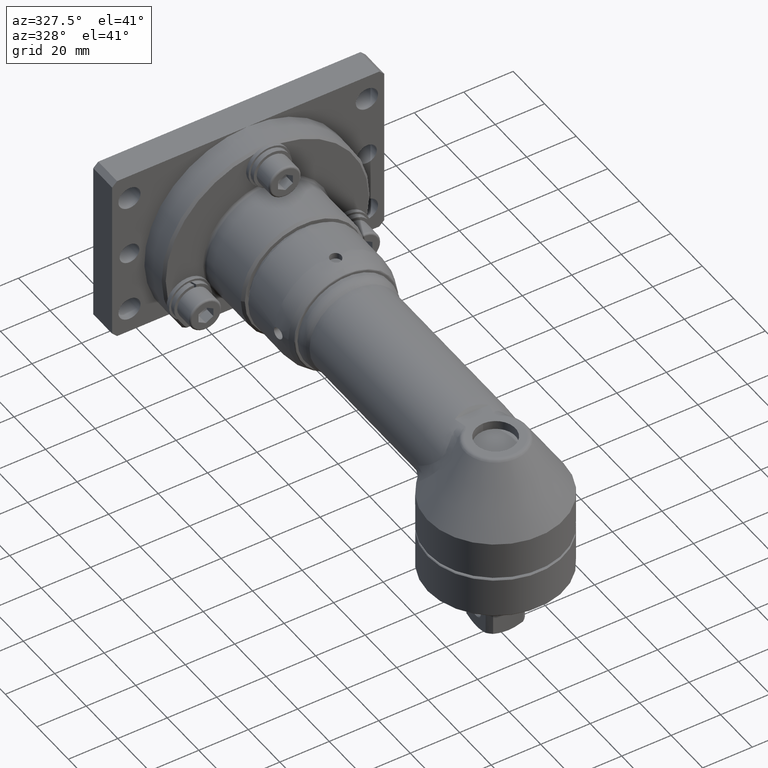
[diagram: clean part render]
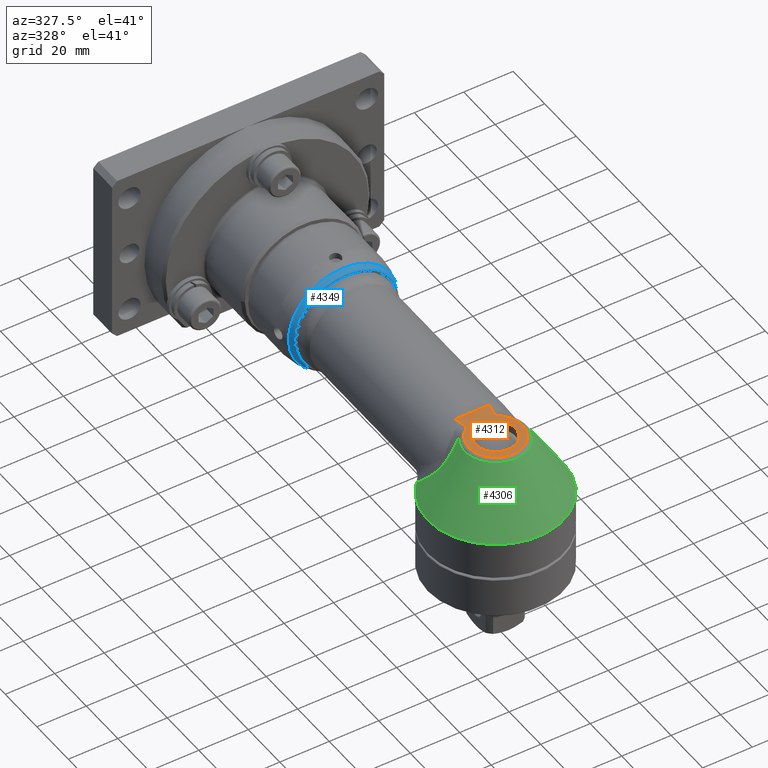
[diagram: same view with three faces highlighted in distinct colors, each labeled with its STEP entity id]
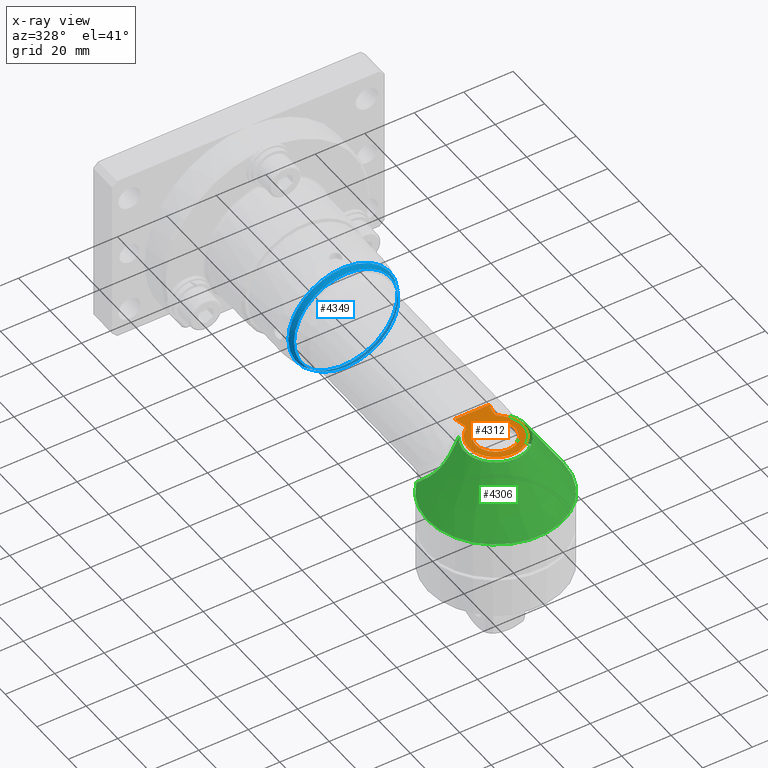
[diagram: x-ray of the same camera — body ghosted, the three highlighted faces saturated]
A machine part, auxiliary view with three faces highlighted in distinct colors.
The next image is the same camera in x-ray (body ghosted, the three faces saturated) — at least one of them is partly hidden behind the body in this view.
Their STEP definitions:

[orange] entity #4312 — the highlighted planar face has unit normal (-0, 0, 1).
#80=B_SPLINE_CURVE_WITH_KNOTS('',3,(#7029,#7030,#7031,#7032,#7033,#7034,
#7035,#7036,#7037,#7038),.UNSPECIFIED.,.F.,.F.,(4,2,2,2,4),(-0.00140261036011754,
0.,0.0569648496069285,0.103191002133639,0.141580793208939),
 .UNSPECIFIED.);
#87=B_SPLINE_CURVE_WITH_KNOTS('',3,(#7174,#7175,#7176,#7177),
 .UNSPECIFIED.,.F.,.F.,(4,4),(0.973125122418284,1.34010919840439),
 .UNSPECIFIED.);
#90=B_SPLINE_CURVE_WITH_KNOTS('',3,(#7197,#7198,#7199,#7200),
 .UNSPECIFIED.,.F.,.F.,(4,4),(6.03686858696217,6.40385286913679),
 .UNSPECIFIED.);
#96=B_SPLINE_CURVE_WITH_KNOTS('',3,(#7337,#7338,#7339,#7340,#7341,#7342,
#7343,#7344,#7345,#7346,#7347,#7348),.UNSPECIFIED.,.F.,.F.,(4,2,2,2,2,4),
(0.,0.0107400562694153,0.151361461856593,0.209738466949664,0.284208449757505,
0.286646957359793),.UNSPECIFIED.);
#182=LINE('',#7440,#391);
#391=VECTOR('',#5353,10.);
#675=FACE_BOUND('',#1013,.T.);
#757=FACE_OUTER_BOUND('',#1012,.T.);
#1012=EDGE_LOOP('',(#2975,#2976,#2977,#2978,#2979,#2980));
#1013=EDGE_LOOP('',(#2981,#2982));
#1319=CIRCLE('',#4617,10.886814280422);
#1328=CIRCLE('',#4632,8.);
#1329=CIRCLE('',#4633,8.);
#1693=VERTEX_POINT('',#7027);
#1694=VERTEX_POINT('',#7028);
#1699=VERTEX_POINT('',#7173);
#1701=VERTEX_POINT('',#7187);
#1702=VERTEX_POINT('',#7196);
#1707=VERTEX_POINT('',#7336);
#1714=VERTEX_POINT('',#7442);
#1715=VERTEX_POINT('',#7443);
#2169=EDGE_CURVE('',#1693,#1694,#80,.T.);
#2178=EDGE_CURVE('',#1694,#1699,#87,.T.);
#2181=EDGE_CURVE('',#1701,#1702,#90,.T.);
#2189=EDGE_CURVE('',#1707,#1702,#96,.F.);
#2192=EDGE_CURVE('',#1707,#1693,#1319,.T.);
#2203=EDGE_CURVE('',#1701,#1699,#182,.T.);
#2204=EDGE_CURVE('',#1714,#1715,#1328,.T.);
#2205=EDGE_CURVE('',#1715,#1714,#1329,.T.);
#2975=ORIENTED_EDGE('',*,*,#2181,.F.);
#2976=ORIENTED_EDGE('',*,*,#2203,.T.);
#2977=ORIENTED_EDGE('',*,*,#2178,.F.);
#2978=ORIENTED_EDGE('',*,*,#2169,.F.);
#2979=ORIENTED_EDGE('',*,*,#2192,.F.);
#2980=ORIENTED_EDGE('',*,*,#2189,.T.);
#2981=ORIENTED_EDGE('',*,*,#2204,.T.);
#2982=ORIENTED_EDGE('',*,*,#2205,.T.);
#4164=PLANE('',#4636);
#4312=ADVANCED_FACE('',(#757,#675),#4164,.T.);
#4617=AXIS2_PLACEMENT_3D('',#7418,#5323,#5324);
#4632=AXIS2_PLACEMENT_3D('',#7444,#5356,#5357);
#4633=AXIS2_PLACEMENT_3D('',#7445,#5358,#5359);
#4636=AXIS2_PLACEMENT_3D('',#7451,#5365,#5366);
#5323=DIRECTION('center_axis',(2.51278438236415E-15,-2.47358770109276E-30,
-1.));
#5324=DIRECTION('ref_axis',(-3.87185195719844E-16,-1.,1.50067478820534E-30));
#5353=DIRECTION('',(-1.,6.70462140602243E-16,-2.39031970244941E-15));
#5356=DIRECTION('center_axis',(2.51278438236415E-15,-2.47358770109276E-30,
-1.));
#5357=DIRECTION('ref_axis',(-6.70462140602243E-16,-1.,7.88860905221015E-31));
#5358=DIRECTION('center_axis',(2.51278438236415E-15,-2.47358770109276E-30,
-1.));
#5359=DIRECTION('ref_axis',(-6.70462140602243E-16,-1.,7.88860905221015E-31));
#5365=DIRECTION('center_axis',(-2.51278438236415E-15,2.47358770109276E-30,
1.));
#5366=DIRECTION('ref_axis',(-6.70462140602243E-16,-1.,7.88860905221015E-31));
#7027=CARTESIAN_POINT('',(-6.28758527630094,8.88757540654386,17.));
#7028=CARTESIAN_POINT('',(-6.07286522223493,11.1619760054104,17.));
#7029=CARTESIAN_POINT('Ctrl Pts',(-6.28758527763828,8.88757540349604,17.));
#7030=CARTESIAN_POINT('Ctrl Pts',(-6.28494076685304,8.89143100038875,17.));
#7031=CARTESIAN_POINT('Ctrl Pts',(-6.28230806020952,8.89529429944538,17.0000000000001));
#7032=CARTESIAN_POINT('Ctrl Pts',(-6.17324137966899,9.05640715535814,17.0000000000001));
#7033=CARTESIAN_POINT('Ctrl Pts',(-6.04591976806491,9.28659096914947,17.));
#7034=CARTESIAN_POINT('Ctrl Pts',(-5.91778186356857,9.90196408184702,17.));
#7035=CARTESIAN_POINT('Ctrl Pts',(-5.91004025490411,10.1893597226833,17.));
#7036=CARTESIAN_POINT('Ctrl Pts',(-5.96013080055424,10.704217111771,17.));
#7037=CARTESIAN_POINT('Ctrl Pts',(-6.00729900233225,10.936335472311,17.));
#7038=CARTESIAN_POINT('Ctrl Pts',(-6.07286522223496,11.1619760054105,17.));
#7173=CARTESIAN_POINT('',(-6.90406192264428,15.,17.));
#7174=CARTESIAN_POINT('Ctrl Pts',(-6.07286522223491,11.1619760054104,17.));
#7175=CARTESIAN_POINT('Ctrl Pts',(-6.42481989853922,12.3731978953712,17.));
#7176=CARTESIAN_POINT('Ctrl Pts',(-6.70472593428463,13.6777894775189,17.));
#7177=CARTESIAN_POINT('Ctrl Pts',(-6.90406192264427,15.,17.));
#7187=CARTESIAN_POINT('',(6.90406192264422,15.,17.));
#7196=CARTESIAN_POINT('',(6.07286522223486,11.1619760054104,17.));
#7197=CARTESIAN_POINT('Ctrl Pts',(6.90406192264422,15.,17.));
#7198=CARTESIAN_POINT('Ctrl Pts',(6.70472650538341,13.6777932656602,17.));
#7199=CARTESIAN_POINT('Ctrl Pts',(6.42482090821343,12.3732013700787,17.));
#7200=CARTESIAN_POINT('Ctrl Pts',(6.07286522223485,11.1619760054104,17.));
#7336=CARTESIAN_POINT('',(6.2875852763647,8.88757540639837,17.));
#7337=CARTESIAN_POINT('Ctrl Pts',(6.07286522223485,11.1619760054104,17.));
#7338=CARTESIAN_POINT('Ctrl Pts',(6.06287566062571,11.1275977842736,17.));
#7339=CARTESIAN_POINT('Ctrl Pts',(6.053319241172,11.0930900743024,17.));
#7340=CARTESIAN_POINT('Ctrl Pts',(5.92501048777276,10.6051413340792,17.));
#7341=CARTESIAN_POINT('Ctrl Pts',(5.89600736789629,10.1803460673297,17.));
#7342=CARTESIAN_POINT('Ctrl Pts',(5.96494241899959,9.65208796593715,17.));
#7343=CARTESIAN_POINT('Ctrl Pts',(5.9995068247086,9.49872820865364,17.));
#7344=CARTESIAN_POINT('Ctrl Pts',(6.11733859867724,9.16288808620933,17.));
#7345=CARTESIAN_POINT('Ctrl Pts',(6.19964556383302,9.01740300214039,17.0000000000001));
#7346=CARTESIAN_POINT('Ctrl Pts',(6.28230806020852,8.89529429944677,17.0000000000001));
#7347=CARTESIAN_POINT('Ctrl Pts',(6.28494076685422,8.89143100038691,17.));
#7348=CARTESIAN_POINT('Ctrl Pts',(6.28758527763821,8.88757540349603,17.));
#7418=CARTESIAN_POINT('Origin',(-4.27173345001905E-14,4.2050990918577E-29,
17.));
#7440=CARTESIAN_POINT('',(-3.05785028326064E-14,15.,17.));
#7442=CARTESIAN_POINT('',(-8.00000000000004,4.25347410019282E-15,17.));
#7443=CARTESIAN_POINT('',(-3.42920203775042E-14,8.,17.));
#7444=CARTESIAN_POINT('Origin',(-4.063543494164E-14,-2.08189955855046E-15,
17.));
#7445=CARTESIAN_POINT('Origin',(-4.063543494164E-14,-2.08189955855046E-15,
17.));
#7451=CARTESIAN_POINT('Origin',(-4.60419825584601E-14,4.42800415724735E-29,
17.));

[blue] entity #4349 — the highlighted conical surface has half-angle 25 deg.
#155=CONICAL_SURFACE('',#4718,22.25,0.436332312998583);
#214=LINE('',#7963,#423);
#423=VECTOR('',#5561,22.25);
#794=FACE_OUTER_BOUND('',#1055,.T.);
#1055=EDGE_LOOP('',(#3187,#3188,#3189,#3190,#3191,#3192,#3193,#3194));
#1369=CIRCLE('',#4708,22.0946168055497);
#1370=CIRCLE('',#4709,22.0946168055497);
#1371=CIRCLE('',#4710,22.0946168055497);
#1378=CIRCLE('',#4719,21.1346187631146);
#1379=CIRCLE('',#4720,21.1346187631146);
#1380=CIRCLE('',#4721,21.1346187631146);
#1790=VERTEX_POINT('',#7943);
#1791=VERTEX_POINT('',#7947);
#1792=VERTEX_POINT('',#7949);
#1795=VERTEX_POINT('',#7962);
#1796=VERTEX_POINT('',#7964);
#1797=VERTEX_POINT('',#7966);
#2307=EDGE_CURVE('',#1790,#1791,#1369,.T.);
#2308=EDGE_CURVE('',#1791,#1792,#1370,.T.);
#2309=EDGE_CURVE('',#1792,#1790,#1371,.T.);
#2316=EDGE_CURVE('',#1792,#1795,#214,.T.);
#2317=EDGE_CURVE('',#1796,#1795,#1378,.T.);
#2318=EDGE_CURVE('',#1797,#1796,#1379,.T.);
#2319=EDGE_CURVE('',#1795,#1797,#1380,.T.);
#3187=ORIENTED_EDGE('',*,*,#2308,.F.);
#3188=ORIENTED_EDGE('',*,*,#2307,.F.);
#3189=ORIENTED_EDGE('',*,*,#2309,.F.);
#3190=ORIENTED_EDGE('',*,*,#2316,.T.);
#3191=ORIENTED_EDGE('',*,*,#2317,.F.);
#3192=ORIENTED_EDGE('',*,*,#2318,.F.);
#3193=ORIENTED_EDGE('',*,*,#2319,.F.);
#3194=ORIENTED_EDGE('',*,*,#2316,.F.);
#4349=ADVANCED_FACE('',(#794),#155,.T.);
#4708=AXIS2_PLACEMENT_3D('',#7948,#5539,#5540);
#4709=AXIS2_PLACEMENT_3D('',#7950,#5541,#5542);
#4710=AXIS2_PLACEMENT_3D('',#7951,#5543,#5544);
#4718=AXIS2_PLACEMENT_3D('',#7961,#5559,#5560);
#4719=AXIS2_PLACEMENT_3D('',#7965,#5562,#5563);
#4720=AXIS2_PLACEMENT_3D('',#7967,#5564,#5565);
#4721=AXIS2_PLACEMENT_3D('',#7968,#5566,#5567);
#5539=DIRECTION('center_axis',(2.62158422992891E-16,1.,-8.26195203938096E-16));
#5540=DIRECTION('ref_axis',(0.707106781186549,-7.69582229931874E-16,-0.707106781186546));
#5541=DIRECTION('center_axis',(2.62158422992891E-16,1.,-8.26195203938096E-16));
#5542=DIRECTION('ref_axis',(0.707106781186549,-7.69582229931874E-16,-0.707106781186546));
#5543=DIRECTION('center_axis',(2.62158422992891E-16,1.,-8.26195203938096E-16));
#5544=DIRECTION('ref_axis',(0.707106781186549,-7.69582229931874E-16,-0.707106781186546));
#5559=DIRECTION('center_axis',(3.24337863054654E-16,1.,-8.18789480661057E-16));
#5560=DIRECTION('ref_axis',(1.96730036446087E-15,-6.9295354666289E-16,-1.));
#5561=DIRECTION('',(4.85711319282843E-16,-0.90630778703665,-0.4226182617407));
#5562=DIRECTION('center_axis',(-3.17771485887711E-16,-1.,8.04581958500908E-16));
#5563=DIRECTION('ref_axis',(-1.93668419448219E-15,8.04581958500908E-16,
1.));
#5564=DIRECTION('center_axis',(-3.17771485887711E-16,-1.,8.04581958500908E-16));
#5565=DIRECTION('ref_axis',(-1.93668419448219E-15,8.04581958500908E-16,
1.));
#5566=DIRECTION('center_axis',(-3.17771485887711E-16,-1.,8.04581958500908E-16));
#5567=DIRECTION('ref_axis',(-1.93668419448219E-15,8.04581958500908E-16,
1.));
#7943=CARTESIAN_POINT('',(-22.0946168055498,96.8474133148072,-2.21040303754211E-13));
#7947=CARTESIAN_POINT('',(-15.6232533709225,96.8474133148072,15.6232533709223));
#7948=CARTESIAN_POINT('Origin',(-1.61712016092538E-14,96.8474133148072,
-1.78873754263386E-13));
#7949=CARTESIAN_POINT('',(-5.69321391285047E-14,96.8474133148072,22.0946168055496));
#7950=CARTESIAN_POINT('Origin',(-1.61712016092538E-14,96.8474133148072,
-1.78873754263386E-13));
#7951=CARTESIAN_POINT('Origin',(-1.61712016092538E-14,96.8474133148072,
-1.78873754263386E-13));
#7961=CARTESIAN_POINT('Origin',(-1.60631256376045E-14,97.1806336506366,
-1.80552203540679E-13));
#7962=CARTESIAN_POINT('',(-5.58288221213796E-14,94.7886908691294,21.1346187631144));
#7963=CARTESIAN_POINT('',(-5.7110719618756E-14,97.1806336506367,22.2499999999998));
#7964=CARTESIAN_POINT('',(2.86215864304264E-14,94.7886908691293,-21.1346187631148));
#7965=CARTESIAN_POINT('Origin',(-1.4897740006449E-14,94.7886908691294,-1.78557378267684E-13));
#7966=CARTESIAN_POINT('',(-21.1346187631146,94.7886908691294,-2.1758360482631E-13));
#7967=CARTESIAN_POINT('Origin',(-1.4897740006449E-14,94.7886908691294,-1.78557378267684E-13));
#7968=CARTESIAN_POINT('Origin',(-1.4897740006449E-14,94.7886908691294,-1.78557378267684E-13));

[green] entity #4306 — the highlighted conical surface has half-angle 31.8 deg.
#83=B_SPLINE_CURVE_WITH_KNOTS('',3,(#7101,#7102,#7103,#7104,#7105,#7106,
#7107,#7108,#7109),.UNSPECIFIED.,.F.,.F.,(4,1,1,1,1,1,4),(-3.03366258404198,
-2.16690184574442,-1.73352147659564,-1.30014110744687,-0.866760738298087,
-0.433380369149309,-5.30849752138562E-13),.UNSPECIFIED.);
#86=B_SPLINE_CURVE_WITH_KNOTS('',3,(#7148,#7149,#7150,#7151),
 .UNSPECIFIED.,.F.,.F.,(4,4),(-0.227572448577936,-3.89602473230915E-14),
 .UNSPECIFIED.);
#94=B_SPLINE_CURVE_WITH_KNOTS('',3,(#7248,#7249,#7250,#7251),
 .UNSPECIFIED.,.F.,.F.,(4,4),(-3.07910521043144,-2.85153276226513),
 .UNSPECIFIED.);
#95=B_SPLINE_CURVE_WITH_KNOTS('',3,(#7299,#7300,#7301,#7302,#7303,#7304,
#7305,#7306,#7307),.UNSPECIFIED.,.F.,.F.,(4,1,1,1,1,1,4),(-3.03376677609136,
-2.60037152236402,-2.16697626863668,-1.73358101490935,-1.30018576118201,
-0.866790507454673,0.),.UNSPECIFIED.);
#148=CONICAL_SURFACE('',#4618,19.75,0.555014702134197);
#751=FACE_OUTER_BOUND('',#1006,.T.);
#1006=EDGE_LOOP('',(#2942,#2943,#2944,#2945,#2946,#2947,#2948));
#1318=CIRCLE('',#4616,12.5865996663958);
#1320=CIRCLE('',#4619,27.5);
#1321=CIRCLE('',#4620,27.5);
#1696=VERTEX_POINT('',#7045);
#1697=VERTEX_POINT('',#7099);
#1698=VERTEX_POINT('',#7139);
#1704=VERTEX_POINT('',#7237);
#1705=VERTEX_POINT('',#7246);
#1706=VERTEX_POINT('',#7297);
#1708=VERTEX_POINT('',#7420);
#2174=EDGE_CURVE('',#1697,#1696,#83,.T.);
#2177=EDGE_CURVE('',#1698,#1697,#86,.T.);
#2186=EDGE_CURVE('',#1705,#1704,#94,.T.);
#2188=EDGE_CURVE('',#1706,#1705,#95,.T.);
#2191=EDGE_CURVE('',#1696,#1706,#1318,.T.);
#2193=EDGE_CURVE('',#1698,#1708,#1320,.T.);
#2194=EDGE_CURVE('',#1708,#1704,#1321,.T.);
#2942=ORIENTED_EDGE('',*,*,#2177,.F.);
#2943=ORIENTED_EDGE('',*,*,#2193,.T.);
#2944=ORIENTED_EDGE('',*,*,#2194,.T.);
#2945=ORIENTED_EDGE('',*,*,#2186,.F.);
#2946=ORIENTED_EDGE('',*,*,#2188,.F.);
#2947=ORIENTED_EDGE('',*,*,#2191,.F.);
#2948=ORIENTED_EDGE('',*,*,#2174,.F.);
#4306=ADVANCED_FACE('',(#751),#148,.T.);
#4616=AXIS2_PLACEMENT_3D('',#7417,#5321,#5322);
#4618=AXIS2_PLACEMENT_3D('',#7419,#5325,#5326);
#4619=AXIS2_PLACEMENT_3D('',#7421,#5327,#5328);
#4620=AXIS2_PLACEMENT_3D('',#7422,#5329,#5330);
#5321=DIRECTION('center_axis',(-2.39031970244941E-15,2.39147976964896E-30,
1.));
#5322=DIRECTION('ref_axis',(-3.37395233214696E-16,-1.,1.58499729618336E-30));
#5325=DIRECTION('center_axis',(2.51278438236415E-15,-2.47358770109276E-30,
-1.));
#5326=DIRECTION('ref_axis',(-1.87115423730932E-11,-1.,1.22464679867719E-16));
#5327=DIRECTION('center_axis',(-2.51278438236415E-15,2.47358770109276E-30,
1.));
#5328=DIRECTION('ref_axis',(1.,-6.70462140602243E-16,2.51278438236415E-15));
#5329=DIRECTION('center_axis',(-2.51278438236415E-15,2.47358770109276E-30,
1.));
#5330=DIRECTION('ref_axis',(1.,-6.70462140602243E-16,2.51278438236415E-15));
#7045=CARTESIAN_POINT('',(-10.2291824468054,7.33391557301112,16.053911590997));
#7099=CARTESIAN_POINT('',(-20.3633167412801,17.0709752456691,-6.50258451576689));
#7101=CARTESIAN_POINT('Ctrl Pts',(-20.3633167412801,17.0709752456691,-6.5025845157669));
#7102=CARTESIAN_POINT('Ctrl Pts',(-20.4376733668967,15.1413635086279,-4.59513067779416));
#7103=CARTESIAN_POINT('Ctrl Pts',(-20.1543355728755,12.2982996360171,-1.63413477644959));
#7104=CARTESIAN_POINT('Ctrl Pts',(-18.8690961469684,9.01774332394266,2.65502654656472));
#7105=CARTESIAN_POINT('Ctrl Pts',(-17.3759612052667,7.03358694506313,6.12447475770648));
#7106=CARTESIAN_POINT('Ctrl Pts',(-15.2449606938303,6.07411347863478,9.88890214094469));
#7107=CARTESIAN_POINT('Ctrl Pts',(-12.7753212147156,6.43528965630871,13.3414753217448));
#7108=CARTESIAN_POINT('Ctrl Pts',(-11.0895277660205,7.03213798736946,15.2098061362714));
#7109=CARTESIAN_POINT('Ctrl Pts',(-10.2291824468023,7.33391557300533,16.0539115910046));
#7139=CARTESIAN_POINT('',(-20.2607566709845,18.5944007463971,-7.99894081026712));
#7148=CARTESIAN_POINT('Ctrl Pts',(-20.2607599363529,18.5943991246386,-7.99894331079243));
#7149=CARTESIAN_POINT('Ctrl Pts',(-20.3096580291184,18.0856682815247,-7.50225915166308));
#7150=CARTESIAN_POINT('Ctrl Pts',(-20.3437940303267,17.5776046399186,-7.00339624070631));
#7151=CARTESIAN_POINT('Ctrl Pts',(-20.3633167412801,17.0709752456689,-6.50258451576666));
#7237=CARTESIAN_POINT('',(20.2607566714363,18.594400745271,-7.99894080888478));
#7246=CARTESIAN_POINT('',(20.3633167412801,17.0709752456707,-6.50258451576832));
#7248=CARTESIAN_POINT('Ctrl Pts',(20.3633167412801,17.0709752456707,-6.50258451576833));
#7249=CARTESIAN_POINT('Ctrl Pts',(20.3437940303619,17.5776046390041,-7.00339623980222));
#7250=CARTESIAN_POINT('Ctrl Pts',(20.3096580040385,18.0856682935479,-7.50225913290055));
#7251=CARTESIAN_POINT('Ctrl Pts',(20.2607599161118,18.5943991331564,-7.99894329430015));
#7297=CARTESIAN_POINT('',(10.2291824468057,7.33391557300694,16.0539115910039));
#7299=CARTESIAN_POINT('Ctrl Pts',(10.229182446803,7.33391557300504,16.0539115910039));
#7300=CARTESIAN_POINT('Ctrl Pts',(11.0895573148389,7.03212762272762,15.209777145216));
#7301=CARTESIAN_POINT('Ctrl Pts',(12.7764013930574,6.43462935616141,13.3403027944876));
#7302=CARTESIAN_POINT('Ctrl Pts',(15.2470562833352,6.07035133254466,9.88630328814747));
#7303=CARTESIAN_POINT('Ctrl Pts',(17.3747828374357,7.03661448723081,6.12567060993543));
#7304=CARTESIAN_POINT('Ctrl Pts',(18.868812929385,9.01914543916725,2.65516273313006));
#7305=CARTESIAN_POINT('Ctrl Pts',(20.1541752121826,12.3007660989802,-1.63528386301595));
#7306=CARTESIAN_POINT('Ctrl Pts',(20.4376759206973,15.1412972355353,-4.59506516572115));
#7307=CARTESIAN_POINT('Ctrl Pts',(20.3633167412801,17.0709752456695,-6.50258451576715));
#7417=CARTESIAN_POINT('Origin',(-3.97133319962457E-14,3.92905888106596E-29,
16.0539115909934));
#7419=CARTESIAN_POINT('Origin',(-1.13088604782343E-14,1.11324546541536E-29,
4.50052959482116));
#7420=CARTESIAN_POINT('',(27.5,-1.50699301689065E-14,-7.9989408103576));
#7421=CARTESIAN_POINT('Origin',(2.0099613543722E-14,-1.97860816102697E-29,
-7.99894081035767));
#7422=CARTESIAN_POINT('Origin',(2.0099613543722E-14,-1.97860816102697E-29,
-7.99894081035767));